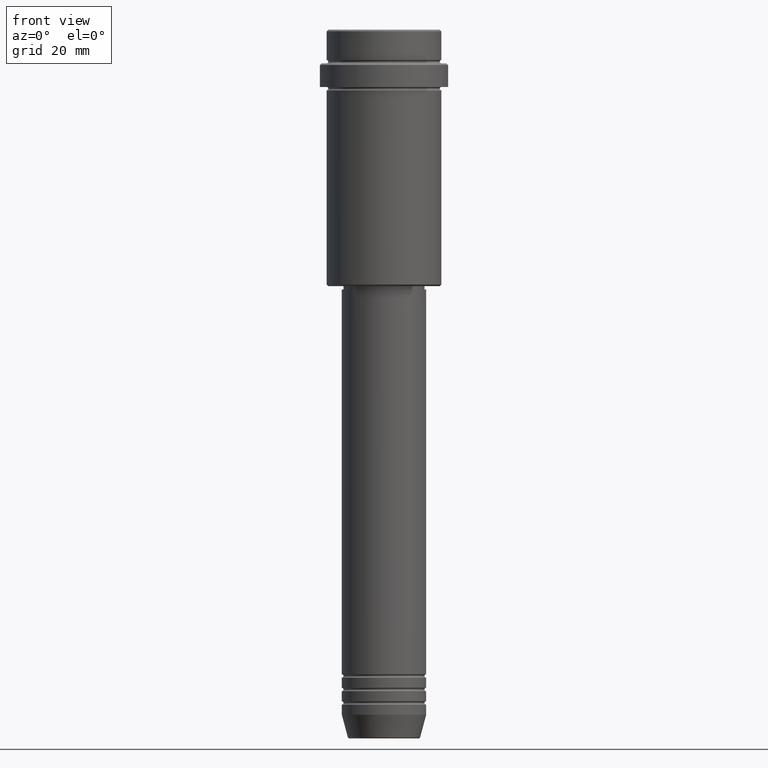
[diagram: clean part render]
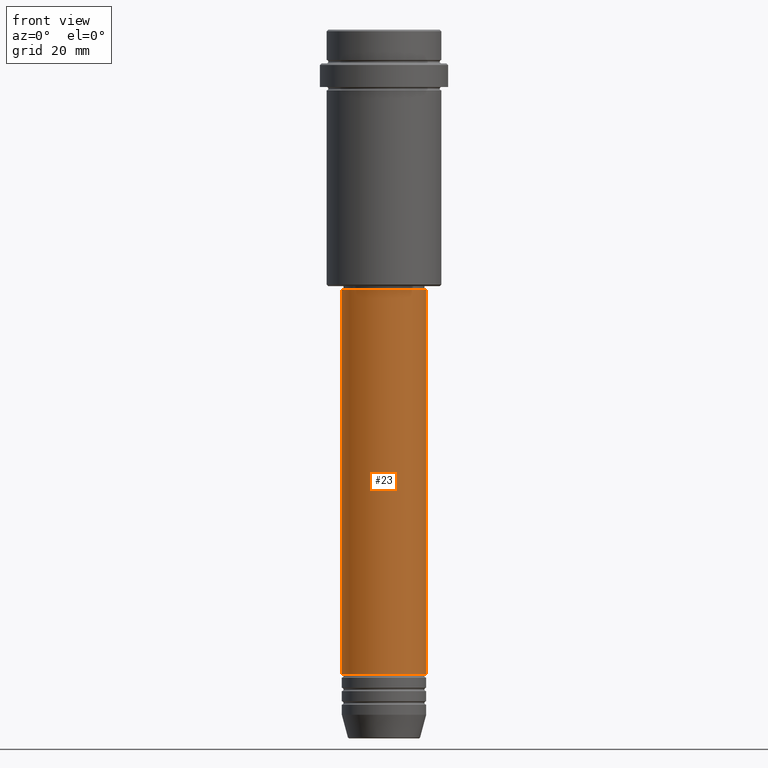
[diagram: same view with one face highlighted and labeled with its STEP entity id]
A machine part, front view. The second image highlights one B-rep face of the part: STEP entity #23.
In plain terms, the highlighted cylindrical surface (partial cylindrical patch) has radius 12.5 mm, axis along (-0, -0, 1).
Its self-contained STEP definition (entity closure, byte-faithful):
#15 = CARTESIAN_POINT ( 'NONE',  ( -12.50000000000000000, 1.530808498934191521E-15, 0.000000000000000000 ) ) ;
#17 = CARTESIAN_POINT ( 'NONE',  ( 0.000000000000000000, 0.000000000000000000, -190.9999999999999147 ) ) ;
#23 = ADVANCED_FACE ( 'NONE', ( #1232 ), #912, .T. ) ;
#80 = ORIENTED_EDGE ( 'NONE', *, *, #1104, .F. ) ;
#90 = VERTEX_POINT ( 'NONE', #1377 ) ;
#96 = ORIENTED_EDGE ( 'NONE', *, *, #589, .T. ) ;
#103 = CIRCLE ( 'NONE', #900, 12.50000000000000000 ) ;
#168 = AXIS2_PLACEMENT_3D ( 'NONE', #1112, #466, #353 ) ;
#205 = DIRECTION ( 'NONE',  ( -0.000000000000000000, -0.000000000000000000, 1.000000000000000000 ) ) ;
#247 = DIRECTION ( 'NONE',  ( -0.000000000000000000, -0.000000000000000000, 1.000000000000000000 ) ) ;
#292 = CARTESIAN_POINT ( 'NONE',  ( 12.50000000000000000, 0.000000000000000000, -190.9999999999999147 ) ) ;
#314 = VECTOR ( 'NONE', #205, 1000.000000000000000 ) ;
#336 = CIRCLE ( 'NONE', #1113, 12.50000000000000000 ) ;
#353 = DIRECTION ( 'NONE',  ( 1.000000000000000000, 0.000000000000000000, 0.000000000000000000 ) ) ;
#466 = DIRECTION ( 'NONE',  ( -0.000000000000000000, -0.000000000000000000, 1.000000000000000000 ) ) ;
#531 = EDGE_CURVE ( 'NONE', #670, #90, #103, .T. ) ;
#541 = LINE ( 'NONE', #15, #314 ) ;
#543 = DIRECTION ( 'NONE',  ( 1.000000000000000000, 0.000000000000000000, 0.000000000000000000 ) ) ;
#558 = DIRECTION ( 'NONE',  ( 1.000000000000000000, 0.000000000000000000, 0.000000000000000000 ) ) ;
#589 = EDGE_CURVE ( 'NONE', #1053, #973, #336, .T. ) ;
#654 = CARTESIAN_POINT ( 'NONE',  ( 12.50000000000000000, 0.000000000000000000, 0.000000000000000000 ) ) ;
#670 = VERTEX_POINT ( 'NONE', #1108 ) ;
#675 = EDGE_LOOP ( 'NONE', ( #80, #96, #1005, #755 ) ) ;
#727 = CARTESIAN_POINT ( 'NONE',  ( -12.50000000000000000, 1.530808498934191521E-15, -190.9999999999999147 ) ) ;
#755 = ORIENTED_EDGE ( 'NONE', *, *, #531, .F. ) ;
#759 = DIRECTION ( 'NONE',  ( -0.000000000000000000, -0.000000000000000000, 1.000000000000000000 ) ) ;
#900 = AXIS2_PLACEMENT_3D ( 'NONE', #1202, #247, #543 ) ;
#912 = CYLINDRICAL_SURFACE ( 'NONE', #168, 12.50000000000000000 ) ;
#973 = VERTEX_POINT ( 'NONE', #292 ) ;
#1005 = ORIENTED_EDGE ( 'NONE', *, *, #1066, .T. ) ;
#1053 = VERTEX_POINT ( 'NONE', #727 ) ;
#1066 = EDGE_CURVE ( 'NONE', #973, #90, #1294, .T. ) ;
#1070 = VECTOR ( 'NONE', #1417, 1000.000000000000000 ) ;
#1104 = EDGE_CURVE ( 'NONE', #1053, #670, #541, .T. ) ;
#1108 = CARTESIAN_POINT ( 'NONE',  ( -12.50000000000000000, 1.530808498934191521E-15, -77.00000000000000000 ) ) ;
#1112 = CARTESIAN_POINT ( 'NONE',  ( 0.000000000000000000, 0.000000000000000000, 0.000000000000000000 ) ) ;
#1113 = AXIS2_PLACEMENT_3D ( 'NONE', #17, #759, #558 ) ;
#1202 = CARTESIAN_POINT ( 'NONE',  ( 0.000000000000000000, 0.000000000000000000, -77.00000000000000000 ) ) ;
#1232 = FACE_OUTER_BOUND ( 'NONE', #675, .T. ) ;
#1294 = LINE ( 'NONE', #654, #1070 ) ;
#1377 = CARTESIAN_POINT ( 'NONE',  ( 12.50000000000000000, 0.000000000000000000, -77.00000000000000000 ) ) ;
#1417 = DIRECTION ( 'NONE',  ( -0.000000000000000000, -0.000000000000000000, 1.000000000000000000 ) ) ;